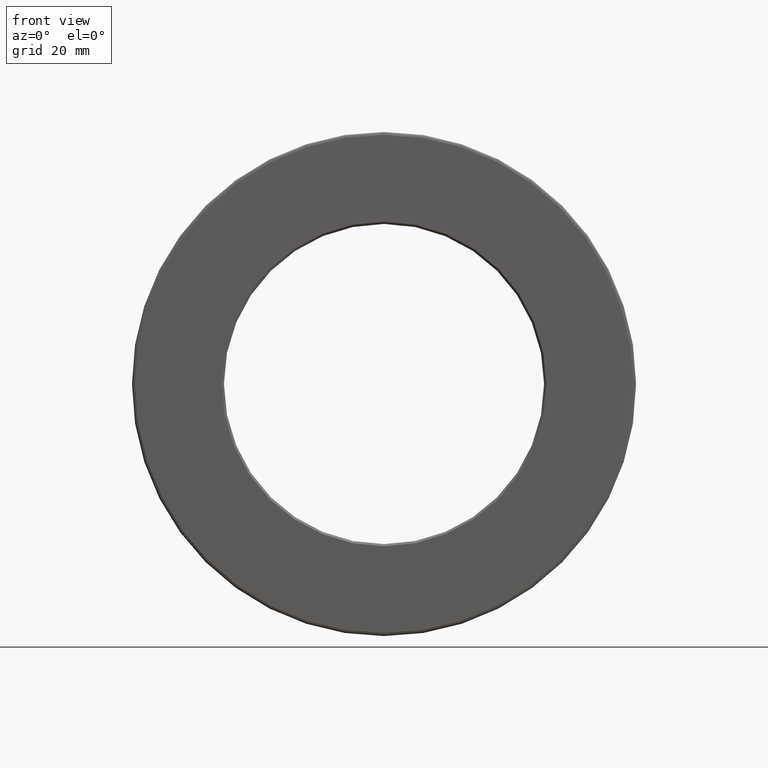
[diagram: clean part render]
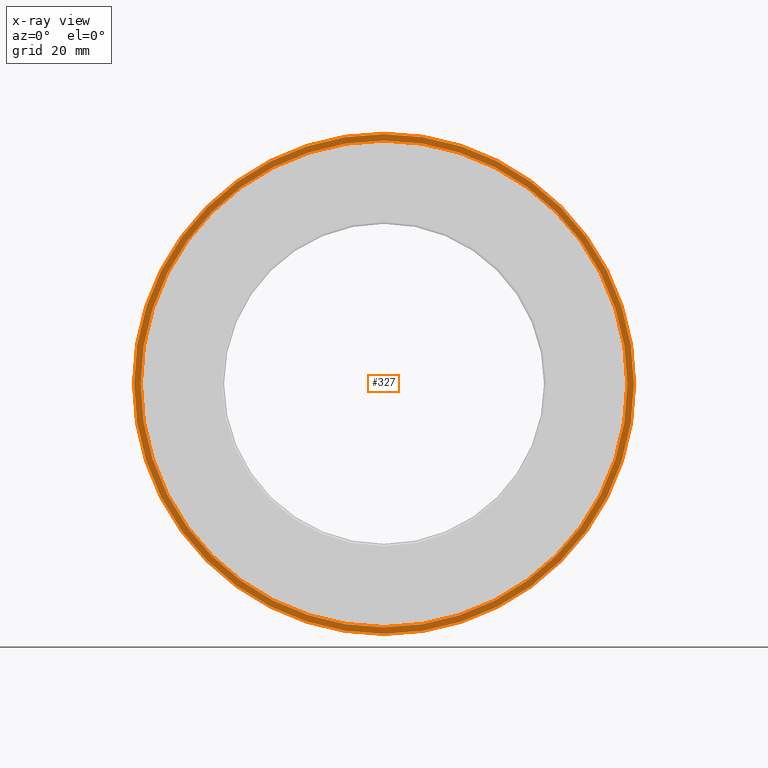
[diagram: x-ray — body ghosted, one internal face saturated and labeled with its STEP entity id]
A machine part, front view, then the same camera in x-ray: the body is ghosted and one INTERNAL B-rep face — a face not visible from any outside direction — is saturated and labeled: STEP entity #327.
In plain terms, the highlighted planar face has unit normal (-0, 1, 0).
Its self-contained STEP definition (entity closure, byte-faithful):
#12 = CIRCLE ( 'NONE', #32, 2.232499999999999900 ) ;
#32 = AXIS2_PLACEMENT_3D ( 'NONE', #72, #456, #549 ) ;
#59 = EDGE_LOOP ( 'NONE', ( #140 ) ) ;
#65 = CARTESIAN_POINT ( 'NONE',  ( 0.0000000000000000000, 1.464999999999999900, 0.0000000000000000000 ) ) ;
#72 = CARTESIAN_POINT ( 'NONE',  ( 0.0000000000000000000, 1.464999999999999900, 0.0000000000000000000 ) ) ;
#140 = ORIENTED_EDGE ( 'NONE', *, *, #575, .T. ) ;
#151 = EDGE_CURVE ( 'NONE', #555, #555, #371, .T. ) ;
#192 = AXIS2_PLACEMENT_3D ( 'NONE', #471, #230, #292 ) ;
#198 = VERTEX_POINT ( 'NONE', #363 ) ;
#202 = EDGE_LOOP ( 'NONE', ( #418 ) ) ;
#216 = CARTESIAN_POINT ( 'NONE',  ( 0.0000000000000000000, 1.464999999999999900, 2.292499999999999500 ) ) ;
#230 = DIRECTION ( 'NONE',  ( -0.0000000000000000000, 1.000000000000000000, -0.0000000000000000000 ) ) ;
#254 = PLANE ( 'NONE',  #493 ) ;
#292 = DIRECTION ( 'NONE',  ( 0.0000000000000000000, 0.0000000000000000000, 1.000000000000000000 ) ) ;
#309 = DIRECTION ( 'NONE',  ( -0.0000000000000000000, 1.000000000000000000, 0.0000000000000000000 ) ) ;
#327 = ADVANCED_FACE ( 'NONE', ( #595, #428 ), #254, .F. ) ;
#363 = CARTESIAN_POINT ( 'NONE',  ( 0.0000000000000000000, 1.464999999999999900, 2.232499999999999900 ) ) ;
#371 = CIRCLE ( 'NONE', #192, 2.292499999999999500 ) ;
#418 = ORIENTED_EDGE ( 'NONE', *, *, #151, .F. ) ;
#428 = FACE_BOUND ( 'NONE', #59, .T. ) ;
#456 = DIRECTION ( 'NONE',  ( -0.0000000000000000000, 1.000000000000000000, -0.0000000000000000000 ) ) ;
#471 = CARTESIAN_POINT ( 'NONE',  ( 0.0000000000000000000, 1.464999999999999900, 0.0000000000000000000 ) ) ;
#493 = AXIS2_PLACEMENT_3D ( 'NONE', #65, #309, #584 ) ;
#549 = DIRECTION ( 'NONE',  ( 0.0000000000000000000, 0.0000000000000000000, 1.000000000000000000 ) ) ;
#555 = VERTEX_POINT ( 'NONE', #216 ) ;
#575 = EDGE_CURVE ( 'NONE', #198, #198, #12, .T. ) ;
#584 = DIRECTION ( 'NONE',  ( 0.0000000000000000000, 0.0000000000000000000, 1.000000000000000000 ) ) ;
#595 = FACE_OUTER_BOUND ( 'NONE', #202, .T. ) ;